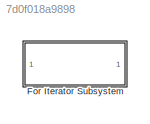
MODEL slx_7d0f018a9898
KIND model
CONFIG AbsTol = auto
CONFIG EnableMultiTasking = off
CONFIG FixedStep = auto
CONFIG MaxStep = auto
CONFIG MinStep = auto
CONFIG RelTol = 1e-3
CONFIG SampleTimeConstraint = Unconstrained
CONFIG SolverName = VariableStepAuto
CONFIG StartTime = 0.0
CONFIG StopTime = 10.0
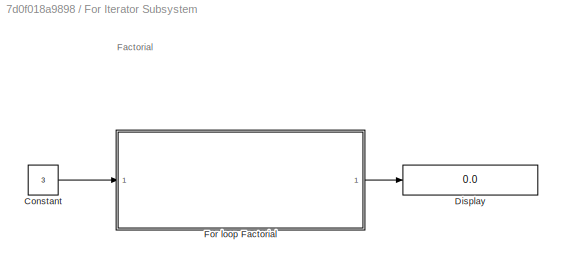
BLOCK [SubSystem] For Iterator Subsystem
  Ports = []
  RequestExecContextInheritance = off
  TreatAsAtomicUnit = on
BLOCK [Constant] For Iterator Subsystem/Constant
  OutDataTypeStr = uint32
  SampleTime = -1
  Value = 3
BLOCK [Display] For Iterator Subsystem/Display
  Decimation = 1
  Format = long
  Ports = [1]
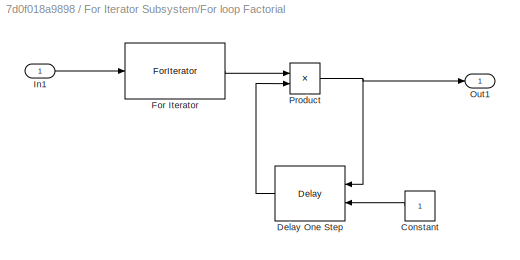
BLOCK [SubSystem] For Iterator Subsystem/For loop Factorial
  Ports = [1, 1]
  RequestExecContextInheritance = off
BLOCK [Constant] For Iterator Subsystem/For loop Factorial/Constant
  NameLocation = top
  OutDataTypeStr = uint32
  SampleTime = -1
BLOCK [Delay] For Iterator Subsystem/For loop Factorial/Delay One Step
  DelayLength = 1
  InitialConditionSource = Input port
  InputPortMap = u0,p4
  Ports = [2, 1]
BLOCK [ForIterator] For Iterator Subsystem/For loop Factorial/For Iterator
  IterationSource = external
  IterationVariableDataType = uint32
  Ports = [1, 1]
BLOCK [Inport] For Iterator Subsystem/For loop Factorial/In1
BLOCK [Outport] For Iterator Subsystem/For loop Factorial/Out1
BLOCK [Product] For Iterator Subsystem/For loop Factorial/Product
  OutDataTypeStr = uint32
  Ports = [2, 1]
ANNOTATION For Iterator Subsystem: Factorial
LINE For Iterator Subsystem/Constant:1 -> For Iterator Subsystem/For loop Factorial:1
LINE For Iterator Subsystem/For loop Factorial/Constant:1 -> For Iterator Subsystem/For loop Factorial/Delay One Step:2
LINE For Iterator Subsystem/For loop Factorial/Delay One Step:1 -> For Iterator Subsystem/For loop Factorial/Product:2
LINE For Iterator Subsystem/For loop Factorial/For Iterator:1 -> For Iterator Subsystem/For loop Factorial/Product:1
LINE For Iterator Subsystem/For loop Factorial/In1:1 -> For Iterator Subsystem/For loop Factorial/For Iterator:1
NET For Iterator Subsystem/For loop Factorial/Product:1 -> For Iterator Subsystem/For loop Factorial/Delay One Step:1, For Iterator Subsystem/For loop Factorial/Out1:1
LINE For Iterator Subsystem/For loop Factorial:1 -> For Iterator Subsystem/Display:1
note: NET lines group one-source signal fan-out (src -> all destinations, sorted); 1:1 wires keep LINE
